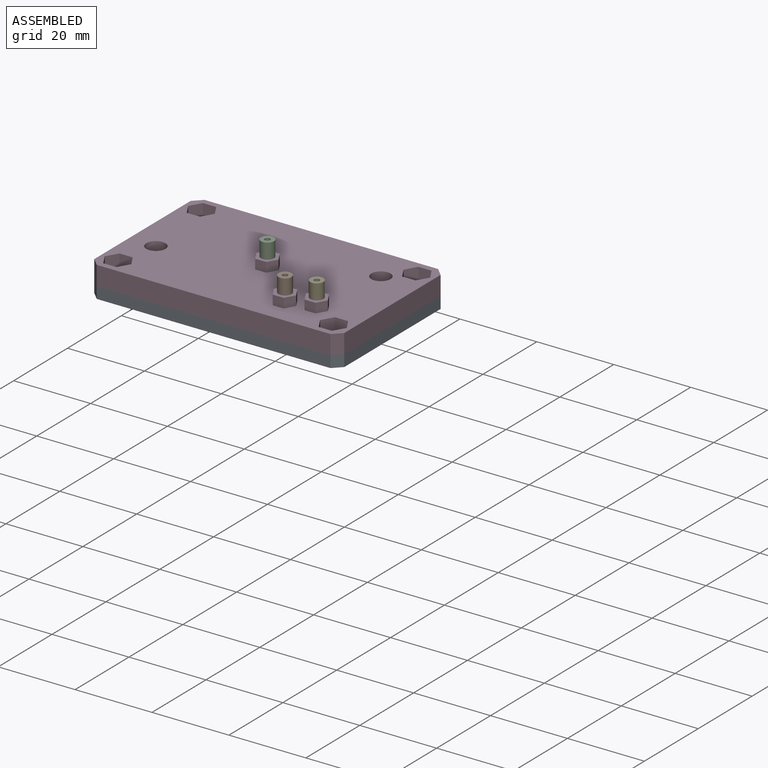
[diagram: assembled view]
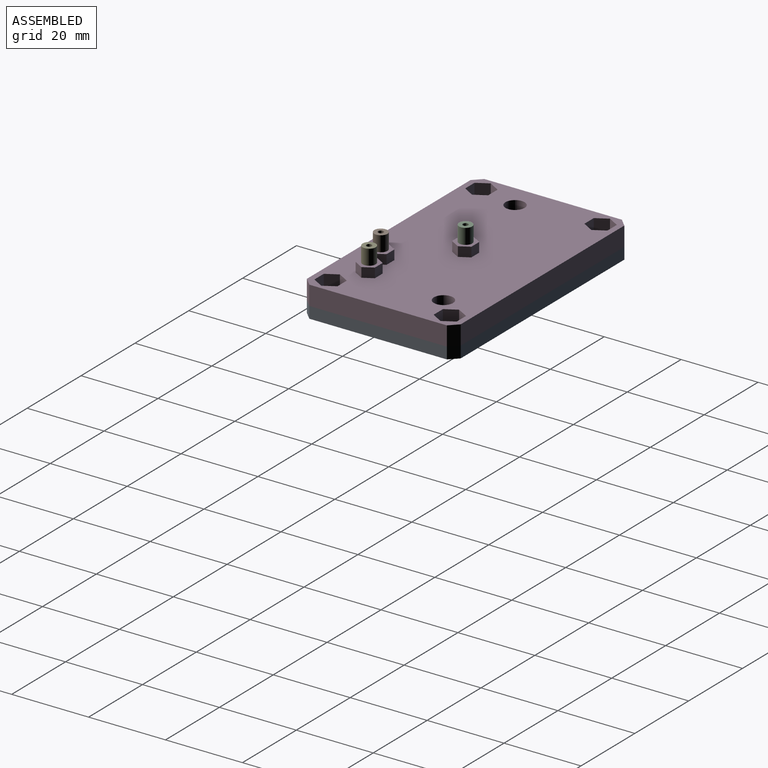
[diagram: assembled view, second angle]
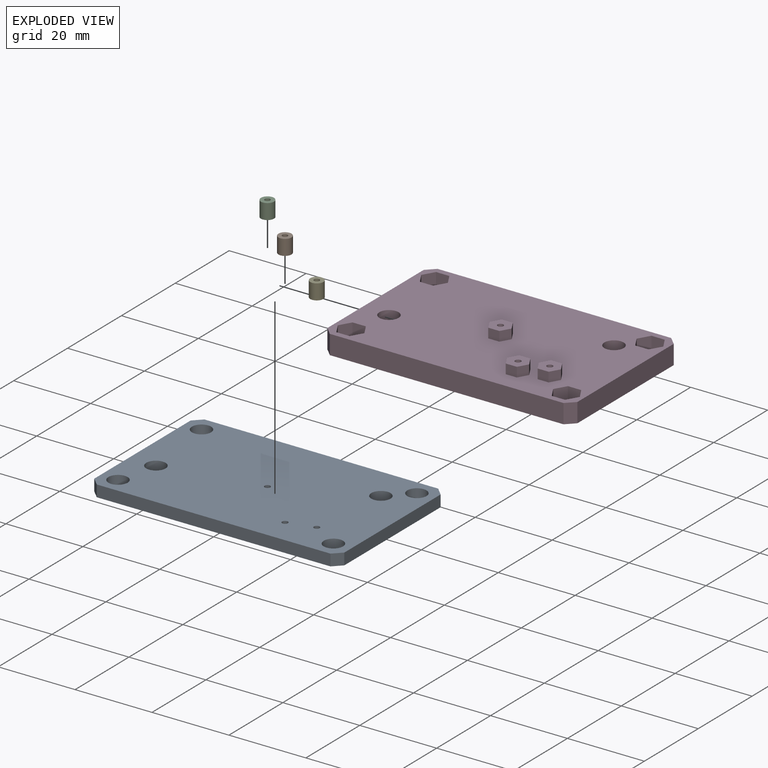
[diagram: exploded view]
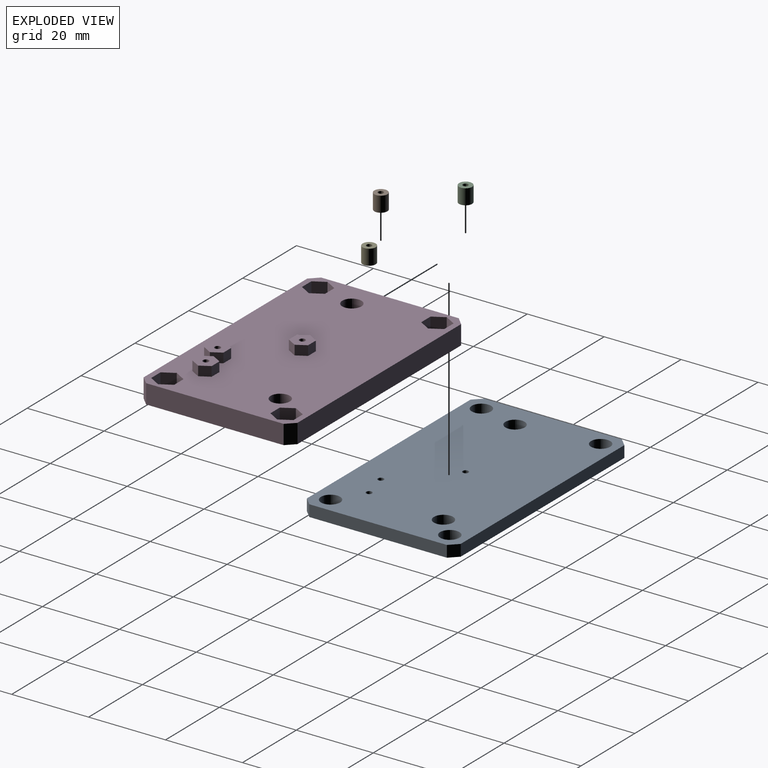
[diagram: exploded view, second angle]
ASSEMBLY  parts=5 mates=4
PART A: 19 faces, bbox 65x40x3 mm
  f0: plane 3x2.12mm, normal (-0.71,-0.71,0), area 9mm2, adj f1,f13,f14,f15
  f1: plane 60.76x3mm, normal (0,-1,0), area 182.3mm2, adj f0,f2,f14,f15
  f2: plane 3x2.12mm, normal (0.71,-0.71,0), area 9mm2, adj f1,f3,f14,f15
  f3: plane 35.76x3mm, normal (1,0,0), area 107.3mm2, adj f2,f4,f14,f15
  f4: plane 3x2.12mm, normal (0.71,0.71,0), area 9mm2, adj f3,f5,f14,f15
  f5: plane 60.76x3mm, normal (0,1,0), area 182.3mm2, adj f4,f6,f14,f15
  f6: plane 3x2.12mm, normal (-0.71,0.71,0), area 9mm2, adj f5,f13,f14,f15
  f7: cylinder r=2.5mm len=5mm, axis (0,0,-1), area 47.1mm2, adj f14,f15
  f8: cylinder r=2.5mm len=5mm, axis (0,0,-1), area 47.1mm2, adj f14,f15
  f9: cylinder r=2.5mm len=5mm, axis (0,0,-1), area 47.1mm2, adj f14,f15
  f10: cylinder r=2.5mm len=5mm, axis (0,0,-1), area 47.1mm2, adj f14,f15
  f11: cylinder r=2.5mm len=5mm, axis (0,0,-1), area 47.1mm2, adj f14,f15
  f12: cylinder r=2.5mm len=5mm, axis (0,0,-1), area 47.1mm2, adj f14,f15
  f13: plane 35.76x3mm, normal (-1,0,0), area 107.3mm2, adj f0,f6,f14,f15
  f14: plane 65x40mm, normal (0,0,1), area 2467.9mm2, adj f0,f1,f2,f3,f4,f5,f6,f7
  f15: plane 65x40mm, normal (0,0,-1), area 2467.9mm2, adj f0,f1,f2,f3,f4,f5,f6,f7
  f16: cylinder r=0.75mm len=3mm, axis (0,0,1), area 14.1mm2, adj f14,f15
  f17: cylinder r=0.75mm len=3mm, axis (0,0,1), area 14.1mm2, adj f14,f15
  f18: cylinder r=0.75mm len=3mm, axis (0,0,1), area 14.1mm2, adj f14,f15
PART B: 4 faces, bbox 3.4x3.4x4 mm
  f0: plane 3.4x3.4mm, normal (0,0,1), area 7.5mm2, adj f2,f3
  f1: plane 3.4x3.4mm, normal (0,0,-1), area 7.5mm2, adj f2,f3
  f2: cylinder r=1.7mm len=4mm, axis (0,0,1), area 42.7mm2, adj f0,f1
  f3: cylinder r=0.7mm len=4mm, axis (0,0,1), area 17.6mm2, adj f0,f1
PART C: 4 faces, bbox 3.4x3.4x4 mm
  f0: plane 3.4x3.4mm, normal (0,0,-1), area 7.5mm2, adj f2,f3
  f1: plane 3.4x3.4mm, normal (0,0,1), area 7.5mm2, adj f2,f3
  f2: cylinder r=1.7mm len=4mm, axis (0,0,1), area 42.7mm2, adj f0,f1
  f3: cylinder r=0.7mm len=4mm, axis (0,0,1), area 17.6mm2, adj f0,f1
PART D: 60 faces, bbox 65x40x7.5 mm
  f0: plane 65x40mm, normal (0,0,1), area 2362.1mm2, adj f1,f2,f3,f4,f5,f6,f7,f8
  f1: plane 5x2.12mm, normal (-0.71,-0.71,0), area 15mm2, adj f0,f2,f34,f35
  f2: plane 60.76x5mm, normal (0,-1,0), area 303.8mm2, adj f0,f1,f3,f35
  f3: plane 5x2.12mm, normal (0.71,-0.71,0), area 15mm2, adj f0,f2,f4,f35
  f4: plane 35.76x5mm, normal (1,0,0), area 178.8mm2, adj f0,f3,f5,f35
  f5: plane 5x2.12mm, normal (0.71,0.71,0), area 15mm2, adj f0,f4,f6,f35
  f6: plane 60.76x5mm, normal (0,1,0), area 303.8mm2, adj f0,f5,f7,f35
  f7: plane 5x2.12mm, normal (-0.71,0.71,0), area 15mm2, adj f0,f6,f34,f35
  f8: plane 5x3mm, normal (-0.87,0.5,0), area 17.3mm2, adj f0,f9,f30,f35
  f9: plane 5x3.46mm, normal (0,1,0), area 17.3mm2, adj f0,f8,f10,f35
  f10: plane 5x3mm, normal (0.87,0.5,0), area 17.3mm2, adj f0,f9,f11,f35
  f11: plane 5x3mm, normal (0.87,-0.5,0), area 17.3mm2, adj f0,f10,f12,f35
  f12: plane 5x3.46mm, normal (0,-1,0), area 17.3mm2, adj f0,f11,f30,f35
  f13: plane 5x3.46mm, normal (0,-1,0), area 17.3mm2, adj f0,f14,f31,f35
  f14: plane 5x3mm, normal (-0.87,-0.5,0), area 17.3mm2, adj f0,f13,f15,f35
  f15: plane 5x3mm, normal (-0.87,0.5,0), area 17.3mm2, adj f0,f14,f16,f35
  f16: plane 5x3.46mm, normal (0,1,0), area 17.3mm2, adj f0,f15,f17,f35
  f17: plane 5x3mm, normal (0.87,0.5,0), area 17.3mm2, adj f0,f16,f31,f35
  f18: plane 5x3.46mm, normal (0,1,0), area 17.3mm2, adj f0,f19,f32,f35
  f19: plane 5x3mm, normal (0.87,0.5,0), area 17.3mm2, adj f0,f18,f20,f35
  f20: plane 5x3mm, normal (0.87,-0.5,0), area 17.3mm2, adj f0,f19,f21,f35
  f21: plane 5x3.46mm, normal (0,-1,0), area 17.3mm2, adj f0,f20,f22,f35
  f22: plane 5x3mm, normal (-0.87,-0.5,0), area 17.3mm2, adj f0,f21,f32,f35
  f23: plane 5x3mm, normal (-0.87,0.5,0), area 17.3mm2, adj f0,f24,f33,f35
  f24: plane 5x3.46mm, normal (0,1,0), area 17.3mm2, adj f0,f23,f25,f35
  f25: plane 5x3mm, normal (0.87,0.5,0), area 17.3mm2, adj f0,f24,f26,f35
  f26: plane 5x3mm, normal (0.87,-0.5,0), area 17.3mm2, adj f0,f25,f27,f35
  f27: plane 5x3.46mm, normal (0,-1,0), area 17.3mm2, adj f0,f26,f33,f35
  f28: cylinder r=2.5mm len=5mm, axis (0,0,-1), area 78.5mm2, adj f0,f35
  f29: cylinder r=2.5mm len=5mm, axis (0,0,-1), area 78.5mm2, adj f0,f35
  f30: plane 5x3mm, normal (-0.87,-0.5,0), area 17.3mm2, adj f0,f8,f12,f35
  f31: plane 5x3mm, normal (0.87,-0.5,0), area 17.3mm2, adj f0,f13,f17,f35
  f32: plane 5x3mm, normal (-0.87,0.5,0), area 17.3mm2, adj f0,f18,f22,f35
  f33: plane 5x3mm, normal (-0.87,-0.5,0), area 17.3mm2, adj f0,f23,f27,f35
  f34: plane 35.76x5mm, normal (-1,0,0), area 178.8mm2, adj f0,f1,f7,f35
  f35: plane 65x40mm, normal (0,0,-1), area 2421.7mm2, adj f1,f2,f3,f4,f5,f6,f7,f8
  f36: cylinder r=0.75mm len=7.5mm, axis (0,0,1), area 35.3mm2, adj f35,f59
  f37: cylinder r=0.75mm len=7.5mm, axis (0,0,1), area 35.3mm2, adj f35,f52
  f38: cylinder r=0.75mm len=7.5mm, axis (0,0,1), area 35.3mm2, adj f35,f45
  f39: plane 2.5x2.5mm, normal (-0.87,-0.5,0), area 7.2mm2, adj f0,f40,f44,f45
  f40: plane 2.89x2.5mm, normal (0,-1,0), area 7.2mm2, adj f0,f39,f41,f45
  f41: plane 2.5x2.5mm, normal (0.87,-0.5,0), area 7.2mm2, adj f0,f40,f42,f45
  f42: plane 2.5x2.5mm, normal (0.87,0.5,0), area 7.2mm2, adj f0,f41,f43,f45
  f43: plane 2.89x2.5mm, normal (0,1,0), area 7.2mm2, adj f0,f42,f44,f45
  f44: plane 2.5x2.5mm, normal (-0.87,0.5,0), area 7.2mm2, adj f0,f39,f43,f45
  f45: plane 5.77x5mm, normal (0,0,1), area 19.9mm2, adj f38,f39,f40,f41,f42,f43,f44
  f46: plane 2.89x2.5mm, normal (0,-1,0), area 7.2mm2, adj f0,f47,f51,f52
  f47: plane 2.5x2.5mm, normal (0.87,-0.5,0), area 7.2mm2, adj f0,f46,f48,f52
  f48: plane 2.5x2.5mm, normal (0.87,0.5,0), area 7.2mm2, adj f0,f47,f49,f52
  f49: plane 2.89x2.5mm, normal (0,1,0), area 7.2mm2, adj f0,f48,f50,f52
  f50: plane 2.5x2.5mm, normal (-0.87,0.5,0), area 7.2mm2, adj f0,f49,f51,f52
  f51: plane 2.5x2.5mm, normal (-0.87,-0.5,0), area 7.2mm2, adj f0,f46,f50,f52
  f52: plane 5.77x5mm, normal (0,0,1), area 19.9mm2, adj f37,f46,f47,f48,f49,f50,f51
  f53: plane 2.89x2.5mm, normal (0,-1,0), area 7.2mm2, adj f0,f54,f58,f59
  f54: plane 2.5x2.5mm, normal (0.87,-0.5,0), area 7.2mm2, adj f0,f53,f55,f59
  f55: plane 2.5x2.5mm, normal (0.87,0.5,0), area 7.2mm2, adj f0,f54,f56,f59
  f56: plane 2.89x2.5mm, normal (0,1,0), area 7.2mm2, adj f0,f55,f57,f59
  f57: plane 2.5x2.5mm, normal (-0.87,0.5,0), area 7.2mm2, adj f0,f56,f58,f59
  f58: plane 2.5x2.5mm, normal (-0.87,-0.5,0), area 7.2mm2, adj f0,f53,f57,f59
  f59: plane 5.77x5mm, normal (0,0,1), area 19.9mm2, adj f36,f53,f54,f55,f56,f57,f58
PART E: 4 faces, bbox 3.4x3.4x4 mm
  f0: plane 3.4x3.4mm, normal (0,0,1), area 7.5mm2, adj f2,f3
  f1: plane 3.4x3.4mm, normal (0,0,-1), area 7.5mm2, adj f2,f3
  f2: cylinder r=1.7mm len=4mm, axis (0,0,1), area 42.7mm2, adj f0,f1
  f3: cylinder r=0.7mm len=4mm, axis (0,0,1), area 17.6mm2, adj f0,f1
PLACE A rot(axis=(0,0,1),0deg) t=(0,0,0)mm
PLACE B rot(axis=(0,0,1),0deg) t=(0,0,0)mm
PLACE C rot(axis=(0,0,1),0deg) t=(0,0,0)mm
PLACE D rot(axis=(0,0,1),0deg) t=(0,0,0)mm
PLACE E at identity
MATE fastened D.f38 <-> A.f18  axis (0,0,-1) through (0,0,3)mm
MATE fastened C.f2 <-> D.f38  axis (0,0,1) through (0,0,10.5)mm
MATE fastened D.f36 <-> E.f2  axis (0,0,1) through (20.39,-10.81,10.5)mm
MATE fastened B.f2 <-> D.f37  axis (0,0,-1) through (13.41,-12.65,10.5)mm
